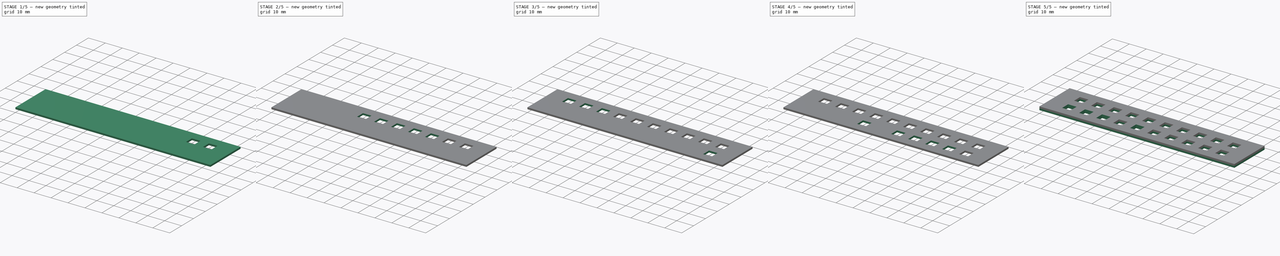
[diagram: build sequence overview — one tinted view per stage of 5, left to right]
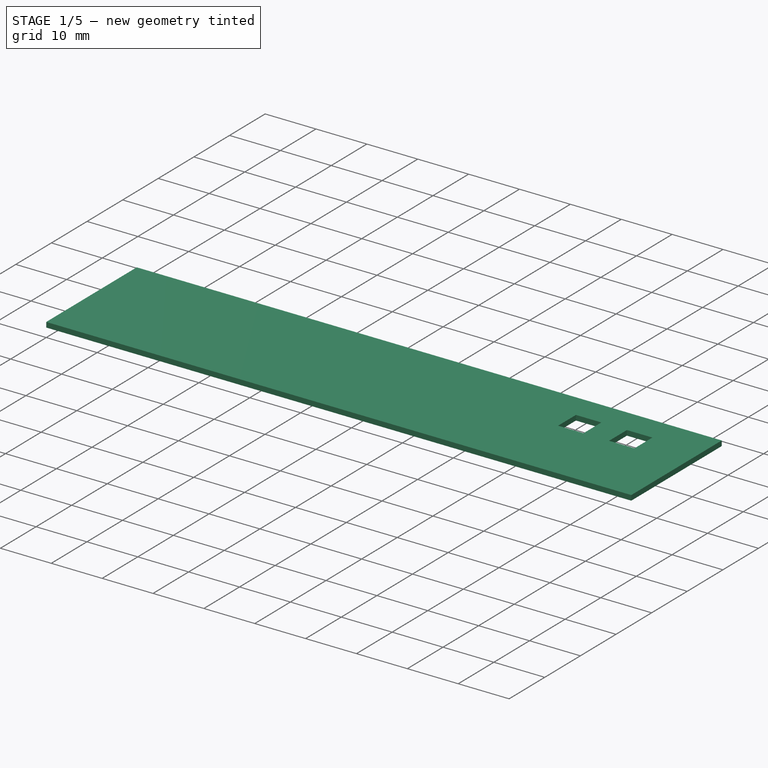
[diagram: stage 1 of 5 — iso view after this stage's code; geometry added in this stage tinted green]
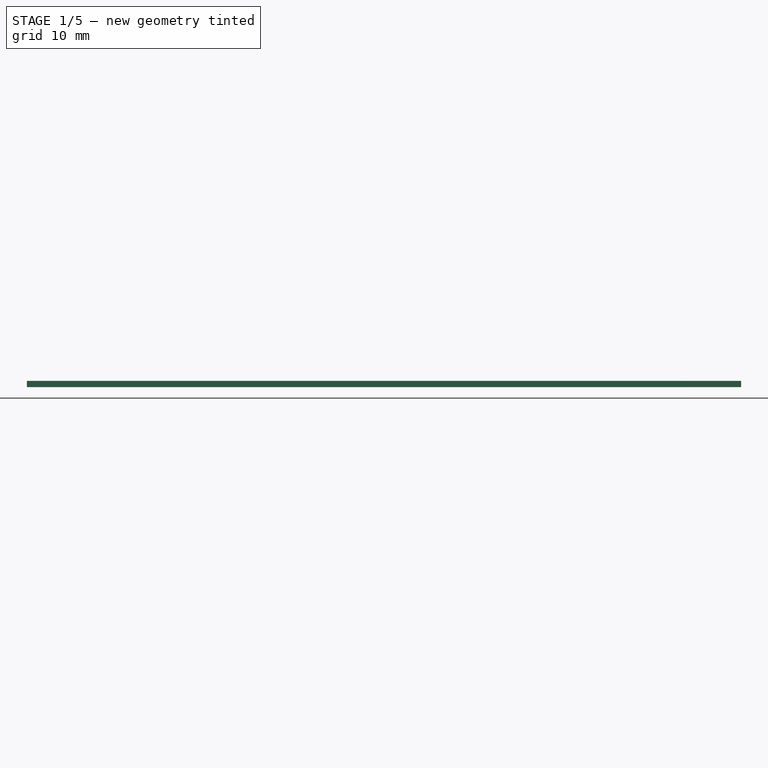
[diagram: stage 1 of 5 — front view after this stage's code; geometry added in this stage tinted green]
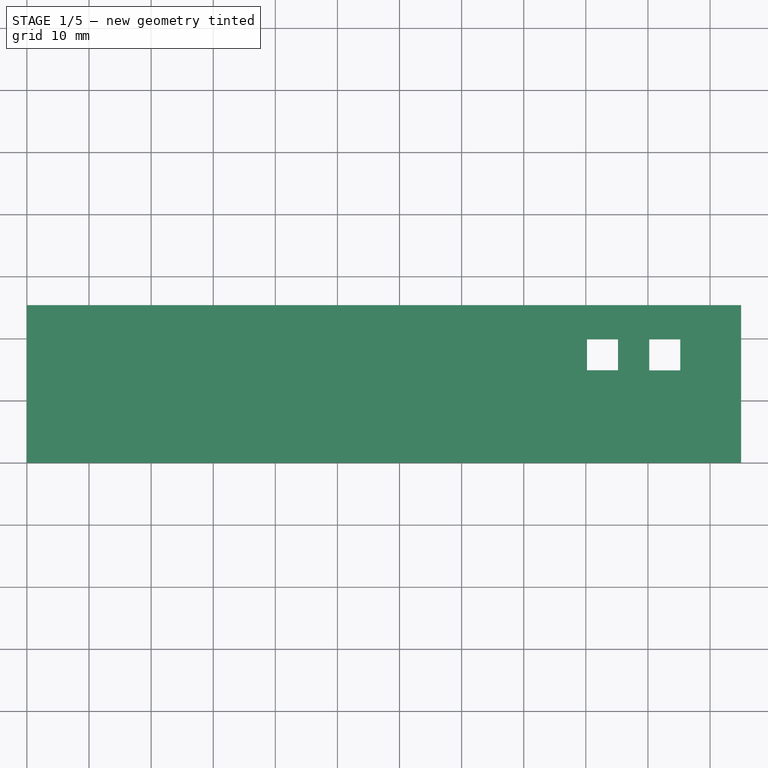
[diagram: stage 1 of 5 — top view after this stage's code; geometry added in this stage tinted green]
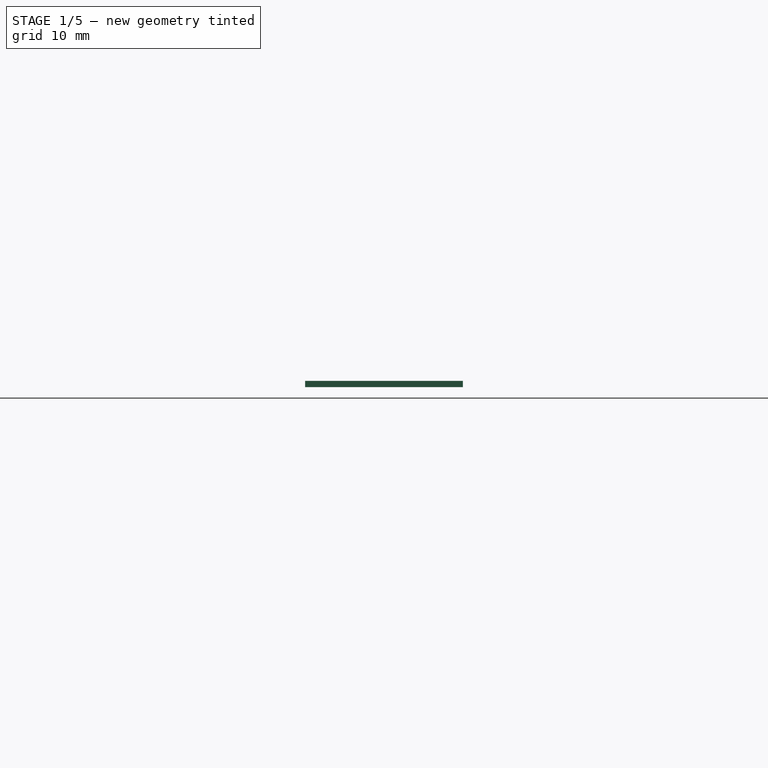
[diagram: stage 1 of 5 — right view after this stage's code; geometry added in this stage tinted green]
FCSTD DOCUMENT  (FreeCAD 0.17R13522 (Git))
Label: S205
License: All rights reserved
LicenseURL: http://en.wikipedia.org/wiki/All_rights_reserved
objects: PartDesign::Pocket×21, Part::Box×1, Sketcher::SketchObject×1, PartDesign::FeatureBase×1, PartDesign::Pad×1, PartDesign::Body×1
note: 48 computed .brp shape members not serialized (recipe doc carries the construction recipe); baked Part::Feature solids carry a one-line shape summary decoded from their .brp

FEATURE [Part::Box] Box  label="Cube"
  AttacherType = Attacher::AttachEngine3D
  Height = 1
  Length = 115
  Width = 25.4
FEATURE [Sketcher::SketchObject] Sketch
  MapMode = 5
  Support = -> [XY_Plane]
  sketch-geometry (99):
    g0: LineSegment StartX=9.9811 StartY=19.9388 StartZ=0 EndX=14.9811 EndY=19.9388 EndZ=0
    g1: LineSegment StartX=14.9811 StartY=19.9388 StartZ=0 EndX=14.9811 EndY=14.9388 EndZ=0
    g2: LineSegment StartX=14.9811 StartY=14.9388 StartZ=0 EndX=9.9811 EndY=14.9388 EndZ=0
    g3: LineSegment StartX=9.9811 StartY=14.9388 StartZ=0 EndX=9.9811 EndY=19.9388 EndZ=0
    g4: LineSegment StartX=20.0068 StartY=19.9336 StartZ=0 EndX=25.0068 EndY=19.9336 EndZ=0
    g5: LineSegment StartX=25.0068 StartY=19.9336 StartZ=0 EndX=25.0068 EndY=14.9336 EndZ=0
    g6: LineSegment StartX=25.0068 StartY=14.9336 StartZ=0 EndX=20.0068 EndY=14.9336 EndZ=0
    g7: LineSegment StartX=20.0068 StartY=14.9336 StartZ=0 EndX=20.0068 EndY=19.9336 EndZ=0
    g8: LineSegment [constr] StartX=9.9811 StartY=19.9388 StartZ=0 EndX=20.0068 EndY=19.9336 EndZ=0
    g9: LineSegment StartX=30.0326 StartY=19.9283 StartZ=0 EndX=35.0326 EndY=19.9283 EndZ=0
    g10: LineSegment StartX=35.0326 StartY=19.9283 StartZ=0 EndX=35.0326 EndY=14.9283 EndZ=0
    g11: LineSegment StartX=35.0326 StartY=14.9283 StartZ=0 EndX=30.0326 EndY=14.9283 EndZ=0
    g12: LineSegment StartX=30.0326 StartY=14.9283 StartZ=0 EndX=30.0326 EndY=19.9283 EndZ=0
    g13: LineSegment [constr] StartX=20.0068 StartY=19.9336 StartZ=0 EndX=30.0326 EndY=19.9283 EndZ=0
    g14: LineSegment StartX=40.0583 StartY=19.9231 StartZ=0 EndX=45.0583 EndY=19.9231 EndZ=0
    g15: LineSegment StartX=45.0583 StartY=19.9231 StartZ=0 EndX=45.0583 EndY=14.9231 EndZ=0
    g16: LineSegment StartX=45.0583 StartY=14.9231 StartZ=0 EndX=40.0583 EndY=14.9231 EndZ=0
    g17: LineSegment StartX=40.0583 StartY=14.9231 StartZ=0 EndX=40.0583 EndY=19.9231 EndZ=0
    g18: LineSegment [constr] StartX=30.0326 StartY=19.9283 StartZ=0 EndX=40.0583 EndY=19.9231 EndZ=0
    g19: LineSegment StartX=50.084 StartY=19.9179 StartZ=0 EndX=55.084 EndY=19.9179 EndZ=0
    g20: LineSegment StartX=55.084 StartY=19.9179 StartZ=0 EndX=55.084 EndY=14.9179 EndZ=0
    g21: LineSegment StartX=55.084 StartY=14.9179 StartZ=0 EndX=50.084 EndY=14.9179 EndZ=0
    g22: LineSegment StartX=50.084 StartY=14.9179 StartZ=0 EndX=50.084 EndY=19.9179 EndZ=0
    g23: LineSegment [constr] StartX=40.0583 StartY=19.9231 StartZ=0 EndX=50.084 EndY=19.9179 EndZ=0
    g24: LineSegment StartX=60.1098 StartY=19.9126 StartZ=0 EndX=65.1098 EndY=19.9126 EndZ=0
    g25: LineSegment StartX=65.1098 StartY=19.9126 StartZ=0 EndX=65.1098 EndY=14.9126 EndZ=0
    g26: LineSegment StartX=65.1098 StartY=14.9126 StartZ=0 EndX=60.1098 EndY=14.9126 EndZ=0
    g27: LineSegment StartX=60.1098 StartY=14.9126 StartZ=0 EndX=60.1098 EndY=19.9126 EndZ=0
    g28: LineSegment [constr] StartX=50.084 StartY=19.9179 StartZ=0 EndX=60.1098 EndY=19.9126 EndZ=0
    g29: LineSegment StartX=70.1355 StartY=19.9074 StartZ=0 EndX=75.1355 EndY=19.9074 EndZ=0
    g30: LineSegment StartX=75.1355 StartY=19.9074 StartZ=0 EndX=75.1355 EndY=14.9074 EndZ=0
    g31: LineSegment StartX=75.1355 StartY=14.9074 StartZ=0 EndX=70.1355 EndY=14.9074 EndZ=0
    g32: LineSegment StartX=70.1355 StartY=14.9074 StartZ=0 EndX=70.1355 EndY=19.9074 EndZ=0
    g33: LineSegment [constr] StartX=60.1098 StartY=19.9126 StartZ=0 EndX=70.1355 EndY=19.9074 EndZ=0
    g34: LineSegment StartX=80.1612 StartY=19.9022 StartZ=0 EndX=85.1612 EndY=19.9022 EndZ=0
    g35: LineSegment StartX=85.1612 StartY=19.9022 StartZ=0 EndX=85.1612 EndY=14.9022 EndZ=0
    g36: LineSegment StartX=85.1612 StartY=14.9022 StartZ=0 EndX=80.1612 EndY=14.9022 EndZ=0
    g37: LineSegment StartX=80.1612 StartY=14.9022 StartZ=0 EndX=80.1612 EndY=19.9022 EndZ=0
    g38: LineSegment [constr] StartX=70.1355 StartY=19.9074 StartZ=0 EndX=80.1612 EndY=19.9022 EndZ=0
    g39: LineSegment StartX=90.1869 StartY=19.8969 StartZ=0 EndX=95.1869 EndY=19.8969 EndZ=0
    g40: LineSegment StartX=95.1869 StartY=19.8969 StartZ=0 EndX=95.1869 EndY=14.8969 EndZ=0
    g41: LineSegment StartX=95.1869 StartY=14.8969 StartZ=0 EndX=90.1869 EndY=14.8969 EndZ=0
    g42: LineSegment StartX=90.1869 StartY=14.8969 StartZ=0 EndX=90.1869 EndY=19.8969 EndZ=0
    g43: LineSegment [constr] StartX=80.1612 StartY=19.9022 StartZ=0 EndX=90.1869 EndY=19.8969 EndZ=0
    g44: LineSegment StartX=100.213 StartY=19.8917 StartZ=0 EndX=105.213 EndY=19.8917 EndZ=0
    g45: LineSegment StartX=105.213 StartY=19.8917 StartZ=0 EndX=105.213 EndY=14.8917 EndZ=0
    g46: LineSegment StartX=105.213 StartY=14.8917 StartZ=0 EndX=100.213 EndY=14.8917 EndZ=0
    g47: LineSegment StartX=100.213 StartY=14.8917 StartZ=0 EndX=100.213 EndY=19.8917 EndZ=0
    g48: LineSegment [constr] StartX=90.1869 StartY=19.8969 StartZ=0 EndX=100.213 EndY=19.8917 EndZ=0
    g49: LineSegment StartX=9.97587 StartY=9.91306 StartZ=0 EndX=14.9759 EndY=9.91306 EndZ=0
    g50: LineSegment StartX=14.9759 StartY=9.91306 StartZ=0 EndX=14.9759 EndY=4.91306 EndZ=0
    g51: LineSegment StartX=14.9759 StartY=4.91306 StartZ=0 EndX=9.97587 EndY=4.91306 EndZ=0
    g52: LineSegment StartX=9.97587 StartY=4.91306 StartZ=0 EndX=9.97587 EndY=9.91306 EndZ=0
    g53: LineSegment [constr] StartX=9.9811 StartY=19.9388 StartZ=0 EndX=9.97587 EndY=9.91306 EndZ=0
    g54: LineSegment StartX=20.0016 StartY=9.90783 StartZ=0 EndX=25.0016 EndY=9.90783 EndZ=0
    g55: LineSegment StartX=25.0016 StartY=9.90783 StartZ=0 EndX=25.0016 EndY=4.90783 EndZ=0
    g56: LineSegment StartX=25.0016 StartY=4.90783 StartZ=0 EndX=20.0016 EndY=4.90783 EndZ=0
    g57: LineSegment StartX=20.0016 StartY=4.90783 StartZ=0 EndX=20.0016 EndY=9.90783 EndZ=0
    g58: LineSegment [constr] StartX=9.97587 StartY=9.91306 StartZ=0 EndX=20.0016 EndY=9.90783 EndZ=0
    g59: LineSegment StartX=30.0273 StartY=9.90259 StartZ=0 EndX=35.0273 EndY=9.90259 EndZ=0
    g60: LineSegment StartX=35.0273 StartY=9.90259 StartZ=0 EndX=35.0273 EndY=4.90259 EndZ=0
    g61: LineSegment StartX=35.0273 StartY=4.90259 StartZ=0 EndX=30.0273 EndY=4.90259 EndZ=0
    g62: LineSegment StartX=30.0273 StartY=4.90259 StartZ=0 EndX=30.0273 EndY=9.90259 EndZ=0
    g63: LineSegment [constr] StartX=20.0016 StartY=9.90783 StartZ=0 EndX=30.0273 EndY=9.90259 EndZ=0
    g64: LineSegment StartX=40.0531 StartY=9.89736 StartZ=0 EndX=45.0531 EndY=9.89736 EndZ=0
    g65: LineSegment StartX=45.0531 StartY=9.89736 StartZ=0 EndX=45.0531 EndY=4.89736 EndZ=0
    g66: LineSegment StartX=45.0531 StartY=4.89736 StartZ=0 EndX=40.0531 EndY=4.89736 EndZ=0
    g67: LineSegment StartX=40.0531 StartY=4.89736 StartZ=0 EndX=40.0531 EndY=9.89736 EndZ=0
    g68: LineSegment [constr] StartX=30.0273 StartY=9.90259 StartZ=0 EndX=40.0531 EndY=9.89736 EndZ=0
    g69: LineSegment StartX=50.0788 StartY=9.89213 StartZ=0 EndX=55.0788 EndY=9.89213 EndZ=0
    g70: LineSegment StartX=55.0788 StartY=9.89213 StartZ=0 EndX=55.0788 EndY=4.89213 EndZ=0
    g71: LineSegment StartX=55.0788 StartY=4.89213 StartZ=0 EndX=50.0788 EndY=4.89213 EndZ=0
    g72: LineSegment StartX=50.0788 StartY=4.89213 StartZ=0 EndX=50.0788 EndY=9.89213 EndZ=0
    g73: LineSegment [constr] StartX=40.0531 StartY=9.89736 StartZ=0 EndX=50.0788 EndY=9.89213 EndZ=0
    g74: LineSegment StartX=60.1045 StartY=9.8869 StartZ=0 EndX=65.1045 EndY=9.8869 EndZ=0
    g75: LineSegment StartX=65.1045 StartY=9.8869 StartZ=0 EndX=65.1045 EndY=4.8869 EndZ=0
    g76: LineSegment StartX=65.1045 StartY=4.8869 StartZ=0 EndX=60.1045 EndY=4.8869 EndZ=0
    g77: LineSegment StartX=60.1045 StartY=4.8869 StartZ=0 EndX=60.1045 EndY=9.8869 EndZ=0
    g78: LineSegment [constr] StartX=50.0788 StartY=9.89213 StartZ=0 EndX=60.1045 EndY=9.8869 EndZ=0
    g79: LineSegment StartX=70.1303 StartY=9.88167 StartZ=0 EndX=75.1303 EndY=9.88167 EndZ=0
    g80: LineSegment StartX=75.1303 StartY=9.88167 StartZ=0 EndX=75.1303 EndY=4.88167 EndZ=0
    g81: LineSegment StartX=75.1303 StartY=4.88167 StartZ=0 EndX=70.1303 EndY=4.88167 EndZ=0
    g82: LineSegment StartX=70.1303 StartY=4.88167 StartZ=0 EndX=70.1303 EndY=9.88167 EndZ=0
    g83: LineSegment [constr] StartX=60.1045 StartY=9.8869 StartZ=0 EndX=70.1303 EndY=9.88167 EndZ=0
    g84: LineSegment StartX=80.156 StartY=9.87644 StartZ=0 EndX=85.156 EndY=9.87644 EndZ=0
    g85: LineSegment StartX=85.156 StartY=9.87644 StartZ=0 EndX=85.156 EndY=4.87644 EndZ=0
    g86: LineSegment StartX=85.156 StartY=4.87644 StartZ=0 EndX=80.156 EndY=4.87644 EndZ=0
    g87: LineSegment StartX=80.156 StartY=4.87644 StartZ=0 EndX=80.156 EndY=9.87644 EndZ=0
    g88: LineSegment [constr] StartX=70.1303 StartY=9.88167 StartZ=0 EndX=80.156 EndY=9.87644 EndZ=0
    g89: LineSegment StartX=90.1817 StartY=9.87121 StartZ=0 EndX=95.1817 EndY=9.87121 EndZ=0
    g90: LineSegment StartX=95.1817 StartY=9.87121 StartZ=0 EndX=95.1817 EndY=4.87121 EndZ=0
    g91: LineSegment StartX=95.1817 StartY=4.87121 StartZ=0 EndX=90.1817 EndY=4.87121 EndZ=0
    g92: LineSegment StartX=90.1817 StartY=4.87121 StartZ=0 EndX=90.1817 EndY=9.87121 EndZ=0
    g93: LineSegment [constr] StartX=80.156 StartY=9.87644 StartZ=0 EndX=90.1817 EndY=9.87121 EndZ=0
    g94: LineSegment StartX=100.207 StartY=9.86598 StartZ=0 EndX=105.207 EndY=9.86598 EndZ=0
    g95: LineSegment StartX=105.207 StartY=9.86598 StartZ=0 EndX=105.207 EndY=4.86598 EndZ=0
    g96: LineSegment StartX=105.207 StartY=4.86598 StartZ=0 EndX=100.207 EndY=4.86598 EndZ=0
    g97: LineSegment StartX=100.207 StartY=4.86598 StartZ=0 EndX=100.207 EndY=9.86598 EndZ=0
    g98: LineSegment [constr] StartX=90.1817 StartY=9.87121 StartZ=0 EndX=100.207 EndY=9.86598 EndZ=0
  constraints (276):
    c: Coincident(g0,g1)
    c: Coincident(g1,g2)
    c: Coincident(g2,g3)
    c: Coincident(g3,g0)
    c: Horizontal(g0)
    c: Horizontal(g2)
    c: Vertical(g1)
    c: Vertical(g3)
    c: DistanceX(g0,g0) = 5
    c: Equal(g3,g0)
    c: Coincident(g4,g5)
    c: Coincident(g5,g6)
    c: Coincident(g6,g7)
    c: Coincident(g7,g4)
    c: Horizontal(g4)
    c: Horizontal(g6)
    c: Vertical(g5)
    c: Vertical(g7)
    c: Equal(g0,g4) = 5
    c: Equal(g7,g4)
    c: Coincident(g0,g8)
    c: Coincident(g4,g8)
    c: Distance(g8) = 10.0257
    c: Angle(g8) = -0.000521757
    c: Coincident(g9,g10)
    c: Coincident(g10,g11)
    c: Coincident(g11,g12)
    c: Coincident(g12,g9)
    c: Horizontal(g9)
    c: Horizontal(g11)
    c: Vertical(g10)
    c: Vertical(g12)
    c: Equal(g0,g9) = 5
    c: Equal(g12,g9)
    c: Coincident(g4,g13)
    c: Coincident(g9,g13)
    c: Equal(g8,g13)
    c: Parallel(g13,g8)
    c: Coincident(g14,g15)
    c: Coincident(g15,g16)
    c: Coincident(g16,g17)
    c: Coincident(g17,g14)
    c: Horizontal(g14)
    c: Horizontal(g16)
    c: Vertical(g15)
    c: Vertical(g17)
    c: Equal(g0,g14) = 5
    c: Equal(g17,g14)
    c: Coincident(g9,g18)
    c: Coincident(g14,g18)
    c: Equal(g8,g18)
    c: Parallel(g18,g8)
    c: Coincident(g19,g20)
    c: Coincident(g20,g21)
    c: Coincident(g21,g22)
    c: Coincident(g22,g19)
    c: Horizontal(g19)
    c: Horizontal(g21)
    c: Vertical(g20)
    c: Vertical(g22)
    c: Equal(g0,g19) = 5
    c: Equal(g22,g19)
    c: Coincident(g14,g23)
    c: Coincident(g19,g23)
    c: Equal(g8,g23)
    c: Parallel(g23,g8)
    c: Coincident(g24,g25)
    c: Coincident(g25,g26)
    c: Coincident(g26,g27)
    c: Coincident(g27,g24)
    c: Horizontal(g24)
    c: Horizontal(g26)
    c: Vertical(g25)
    c: Vertical(g27)
    c: Equal(g0,g24) = 5
    c: Equal(g27,g24)
    c: Coincident(g19,g28)
    c: Coincident(g24,g28)
    c: Equal(g8,g28)
    c: Parallel(g28,g8)
    c: Coincident(g29,g30)
    c: Coincident(g30,g31)
    c: Coincident(g31,g32)
    c: Coincident(g32,g29)
    c: Horizontal(g29)
    c: Horizontal(g31)
    c: Vertical(g30)
    c: Vertical(g32)
    c: Equal(g0,g29) = 5
    c: Equal(g32,g29)
    c: Coincident(g24,g33)
    c: Coincident(g29,g33)
    c: Equal(g8,g33)
    c: Parallel(g33,g8)
    c: Coincident(g34,g35)
    c: Coincident(g35,g36)
    c: Coincident(g36,g37)
    c: Coincident(g37,g34)
    c: Horizontal(g34)
    c: Horizontal(g36)
    c: Vertical(g35)
    c: Vertical(g37)
    c: Equal(g0,g34) = 5
    c: Equal(g37,g34)
    c: Coincident(g29,g38)
    c: Coincident(g34,g38)
    c: Equal(g8,g38)
    c: Parallel(g38,g8)
    c: Coincident(g39,g40)
    c: Coincident(g40,g41)
    c: Coincident(g41,g42)
    c: Coincident(g42,g39)
    c: Horizontal(g39)
    c: Horizontal(g41)
    c: Vertical(g40)
    c: Vertical(g42)
    c: Equal(g0,g39) = 5
    c: Equal(g42,g39)
    c: Coincident(g34,g43)
    c: Coincident(g39,g43)
    c: Equal(g8,g43)
    c: Parallel(g43,g8)
    c: Coincident(g44,g45)
    c: Coincident(g45,g46)
    c: Coincident(g46,g47)
    c: Coincident(g47,g44)
    c: Horizontal(g44)
    c: Horizontal(g46)
    c: Vertical(g45)
    c: Vertical(g47)
    c: Equal(g0,g44) = 5
    c: Equal(g47,g44)
    c: Coincident(g39,g48)
    c: Coincident(g44,g48)
    c: Equal(g8,g48)
    c: Parallel(g48,g8)
    c: Coincident(g49,g50)
    c: Coincident(g50,g51)
    c: Coincident(g51,g52)
    c: Coincident(g52,g49)
    c: Horizontal(g49)
    c: Horizontal(g51)
    c: Vertical(g50)
    c: Vertical(g52)
    c: Equal(g0,g49) = 5
    c: Equal(g52,g49)
    c: Coincident(g0,g53)
    c: Coincident(g49,g53)
    c: Equal(g53,g8)
    c: Perpendicular(g53,g8)
    c: Coincident(g54,g55)
    c: Coincident(g55,g56)
    c: Coincident(g56,g57)
    c: Coincident(g57,g54)
    c: Horizontal(g54)
    c: Horizontal(g56)
    c: Vertical(g55)
    c: Vertical(g57)
    c: Equal(g0,g54) = 5
    c: Equal(g57,g54)
    c: Coincident(g49,g58)
    c: Coincident(g54,g58)
    c: Equal(g8,g58)
    c: Parallel(g58,g8)
    c: Coincident(g59,g60)
    c: Coincident(g60,g61)
    c: Coincident(g61,g62)
    c: Coincident(g62,g59)
    c: Horizontal(g59)
    c: Horizontal(g61)
    c: Vertical(g60)
    c: Vertical(g62)
    c: Equal(g0,g59) = 5
    c: Equal(g62,g59)
    c: Coincident(g54,g63)
    c: Coincident(g59,g63)
    c: Equal(g8,g63)
    c: Parallel(g63,g8)
    c: Coincident(g64,g65)
    c: Coincident(g65,g66)
    c: Coincident(g66,g67)
    c: Coincident(g67,g64)
    c: Horizontal(g64)
    c: Horizontal(g66)
    c: Vertical(g65)
    c: Vertical(g67)
    c: Equal(g0,g64) = 5
    c: Equal(g67,g64)
    c: Coincident(g59,g68)
    c: Coincident(g64,g68)
    c: Equal(g8,g68)
    c: Parallel(g68,g8)
    c: Coincident(g69,g70)
    c: Coincident(g70,g71)
    c: Coincident(g71,g72)
    c: Coincident(g72,g69)
    c: Horizontal(g69)
    c: Horizontal(g71)
    c: Vertical(g70)
    c: Vertical(g72)
    c: Equal(g0,g69) = 5
    c: Equal(g72,g69)
    c: Coincident(g64,g73)
    c: Coincident(g69,g73)
    c: Equal(g8,g73)
    c: Parallel(g73,g8)
    c: Coincident(g74,g75)
    c: Coincident(g75,g76)
    c: Coincident(g76,g77)
    c: Coincident(g77,g74)
    c: Horizontal(g74)
    c: Horizontal(g76)
    c: Vertical(g75)
    c: Vertical(g77)
    c: Equal(g0,g74) = 5
    c: Equal(g77,g74)
    c: Coincident(g69,g78)
    c: Coincident(g74,g78)
    c: Equal(g8,g78)
    c: Parallel(g78,g8)
    c: Coincident(g79,g80)
    c: Coincident(g80,g81)
    c: Coincident(g81,g82)
    c: Coincident(g82,g79)
    c: Horizontal(g79)
    c: Horizontal(g81)
    c: Vertical(g80)
    c: Vertical(g82)
    c: Equal(g0,g79) = 5
    c: Equal(g82,g79)
    c: Coincident(g74,g83)
    c: Coincident(g79,g83)
    c: Equal(g8,g83)
    c: Parallel(g83,g8)
    c: Coincident(g84,g85)
    c: Coincident(g85,g86)
    c: Coincident(g86,g87)
    c: Coincident(g87,g84)
    c: Horizontal(g84)
    c: Horizontal(g86)
    c: Vertical(g85)
    c: Vertical(g87)
    c: Equal(g0,g84) = 5
    c: Equal(g87,g84)
    c: Coincident(g79,g88)
    c: Coincident(g84,g88)
    c: Equal(g8,g88)
    c: Parallel(g88,g8)
    c: Coincident(g89,g90)
    c: Coincident(g90,g91)
    c: Coincident(g91,g92)
    c: Coincident(g92,g89)
    c: Horizontal(g89)
    c: Horizontal(g91)
    c: Vertical(g90)
    c: Vertical(g92)
    c: Equal(g0,g89) = 5
    c: Equal(g92,g89)
    c: Coincident(g84,g93)
    c: Coincident(g89,g93)
    c: Equal(g8,g93)
    c: Parallel(g93,g8)
    c: Coincident(g94,g95)
    c: Coincident(g95,g96)
    c: Coincident(g96,g97)
    c: Coincident(g97,g94)
    c: Horizontal(g94)
    c: Horizontal(g96)
    c: Vertical(g95)
    c: Vertical(g97)
    c: Equal(g0,g94) = 5
    c: Equal(g97,g94)
    c: Coincident(g89,g98)
    c: Coincident(g94,g98)
    c: Equal(g8,g98)
    c: Parallel(g98,g8)
FEATURE [PartDesign::FeatureBase] BaseFeature
  BaseFeature = -> Box
FEATURE [PartDesign::Pocket] Pocket
  BaseFeature = -> BaseFeature
  Length = 5
  Length2 = 100
  Profile = -> Sketch
  Type = 1
FEATURE [PartDesign::Pocket] Pocket001
  BaseFeature = -> Pocket
  Length = 5
  Length2 = 100
  Profile = -> Pocket [Face24]
  Type = 0
FEATURE [PartDesign::Pocket] Pocket002
  BaseFeature = -> Pocket001
  Length = 5
  Length2 = 100
  Profile = -> Pocket001 [Face12]
  Type = 0
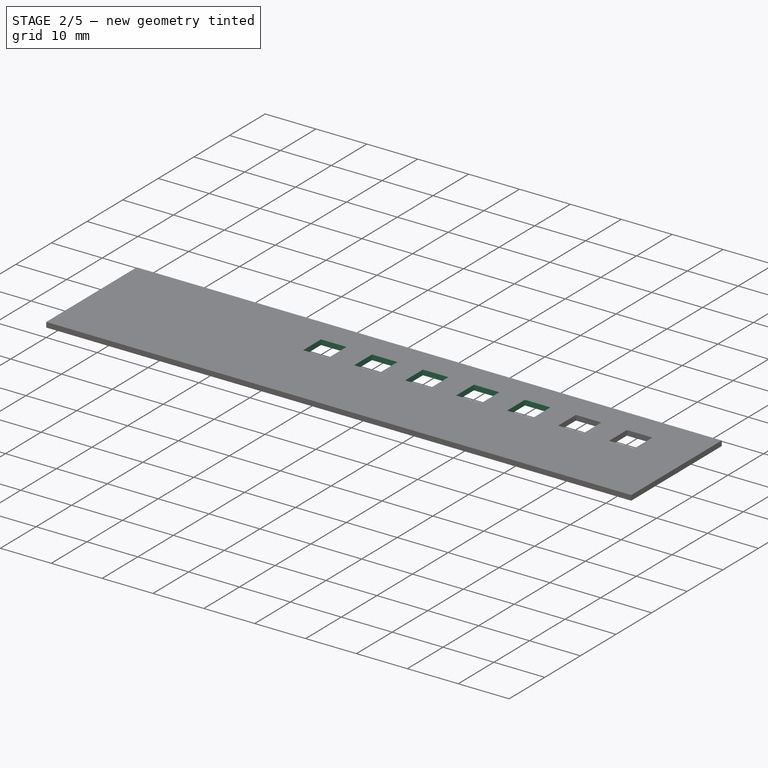
[diagram: stage 2 of 5 — iso view after this stage's code; geometry added in this stage tinted green]
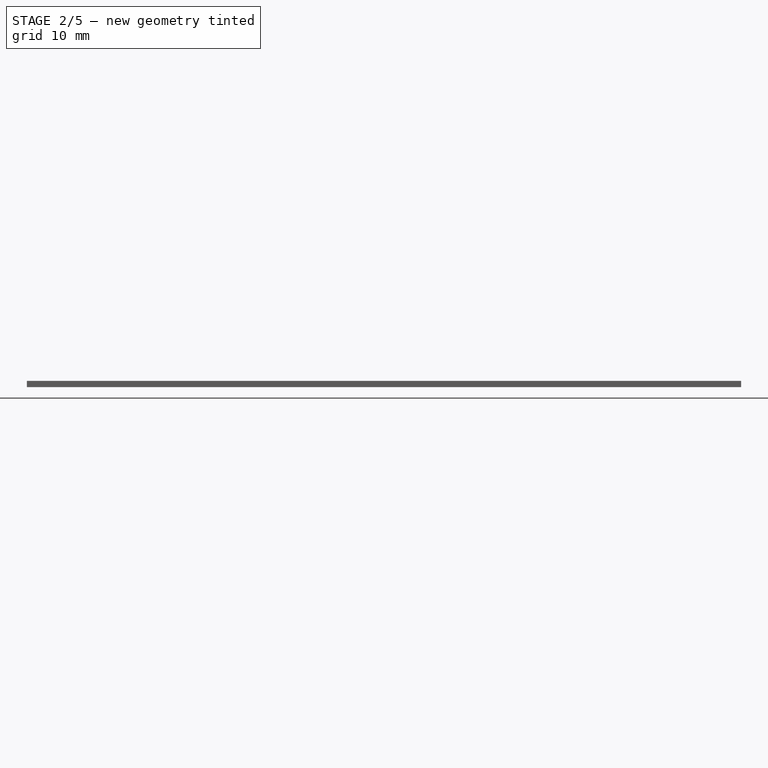
[diagram: stage 2 of 5 — front view after this stage's code; geometry added in this stage tinted green]
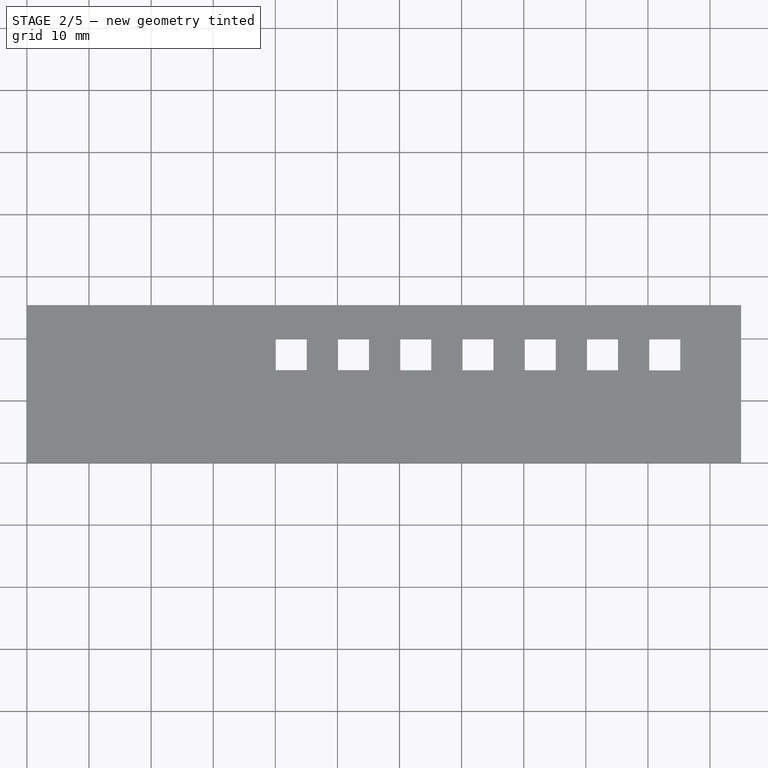
[diagram: stage 2 of 5 — top view after this stage's code; geometry added in this stage tinted green]
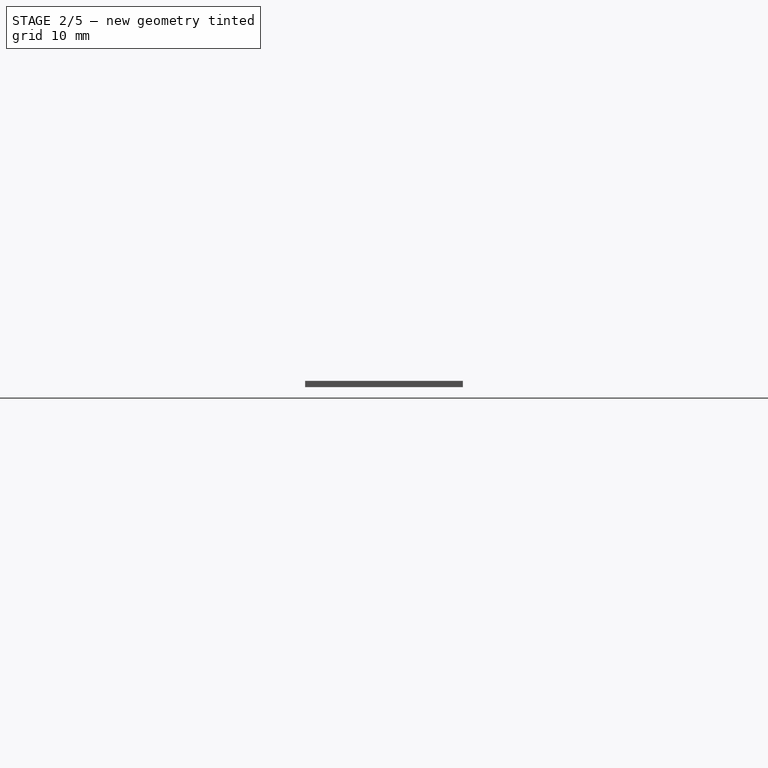
[diagram: stage 2 of 5 — right view after this stage's code; geometry added in this stage tinted green]
FEATURE [PartDesign::Pocket] Pocket003
  BaseFeature = -> Pocket002
  Length = 5
  Length2 = 100
  Profile = -> Pocket002 [Face17]
  Type = 1
FEATURE [PartDesign::Pocket] Pocket004
  BaseFeature = -> Pocket003
  Length = 5
  Length2 = 100
  Profile = -> Pocket003 [Face20]
  Type = 0
FEATURE [PartDesign::Pocket] Pocket005
  BaseFeature = -> Pocket004
  Length = 5
  Length2 = 100
  Profile = -> Pocket004 [Face28]
  Type = 0
FEATURE [PartDesign::Pocket] Pocket006
  BaseFeature = -> Pocket005
  Length = 5
  Length2 = 100
  Profile = -> Pocket005 [Face32]
  Type = 0
FEATURE [PartDesign::Pocket] Pocket007
  BaseFeature = -> Pocket006
  Length = 5
  Length2 = 100
  Profile = -> Pocket006 [Face35]
  Type = 0
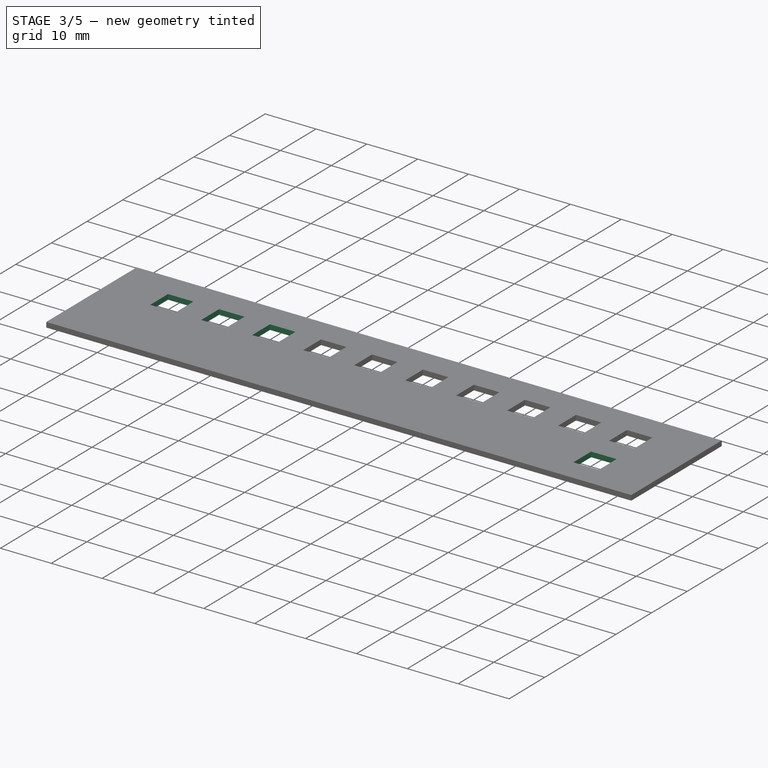
[diagram: stage 3 of 5 — iso view after this stage's code; geometry added in this stage tinted green]
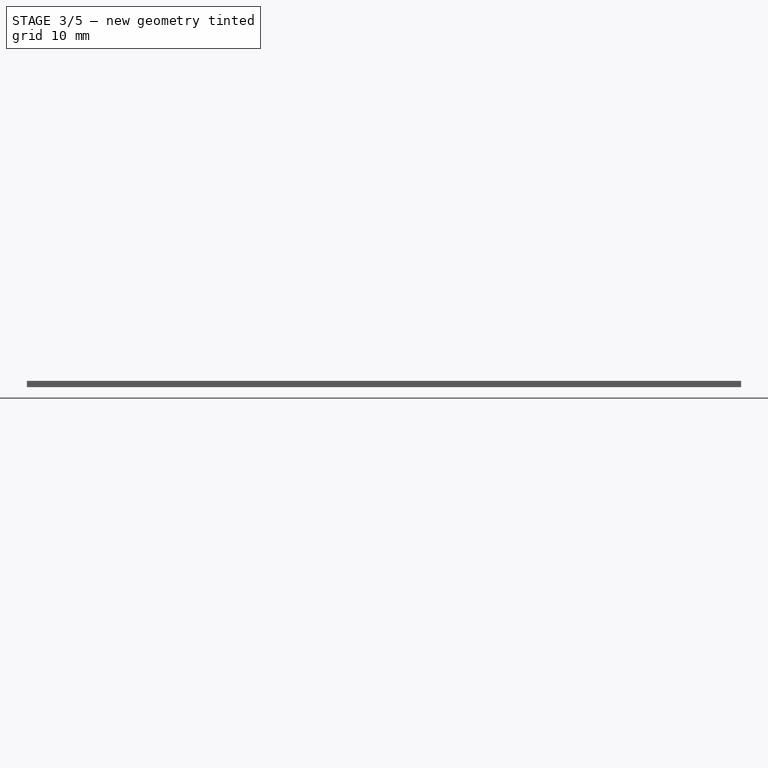
[diagram: stage 3 of 5 — front view after this stage's code; geometry added in this stage tinted green]
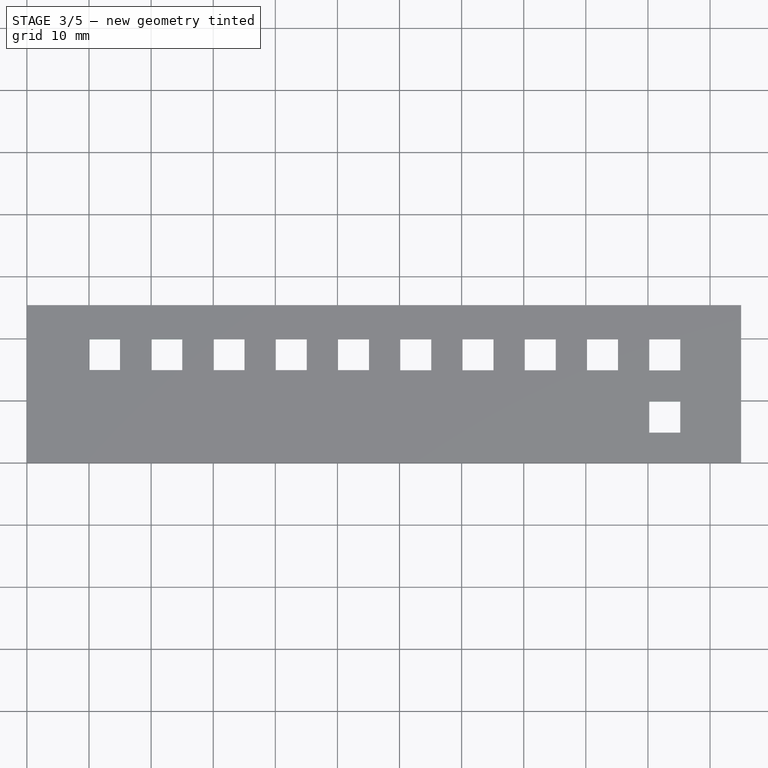
[diagram: stage 3 of 5 — top view after this stage's code; geometry added in this stage tinted green]
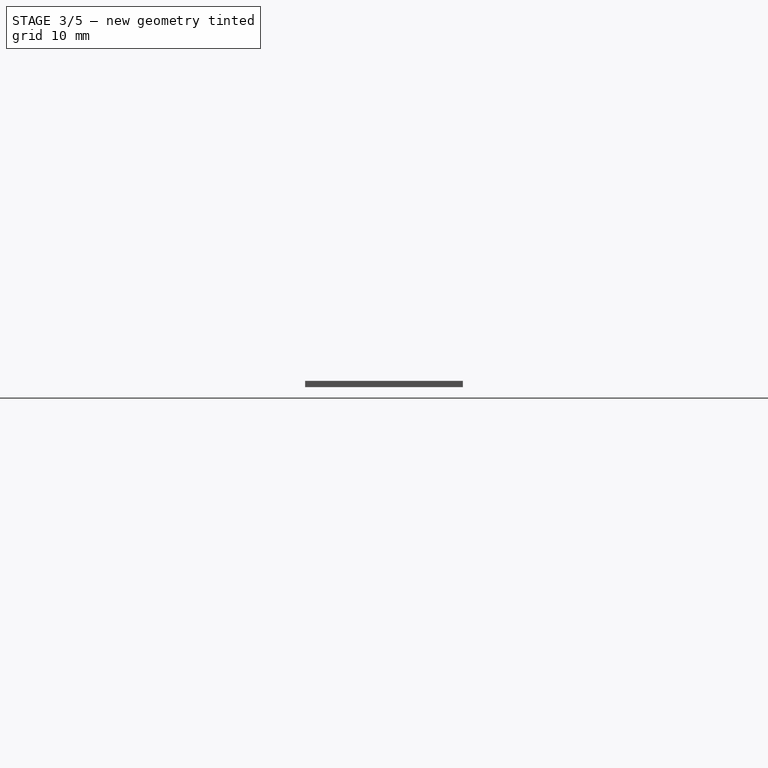
[diagram: stage 3 of 5 — right view after this stage's code; geometry added in this stage tinted green]
FEATURE [PartDesign::Pocket] Pocket008
  BaseFeature = -> Pocket007
  Length = 5
  Length2 = 100
  Profile = -> Pocket007 [Face38]
  Type = 0
FEATURE [PartDesign::Pocket] Pocket009
  BaseFeature = -> Pocket008
  Length = 5
  Length2 = 100
  Profile = -> Pocket008 [Face46]
  Type = 0
FEATURE [PartDesign::Pocket] Pocket010
  BaseFeature = -> Pocket009
  Length = 5
  Length2 = 100
  Profile = -> Pocket009 [Face52]
  Type = 0
FEATURE [PartDesign::Pocket] Pocket011
  BaseFeature = -> Pocket010
  Length = 5
  Length2 = 100
  Profile = -> Pocket010 [Face55]
  Type = 0
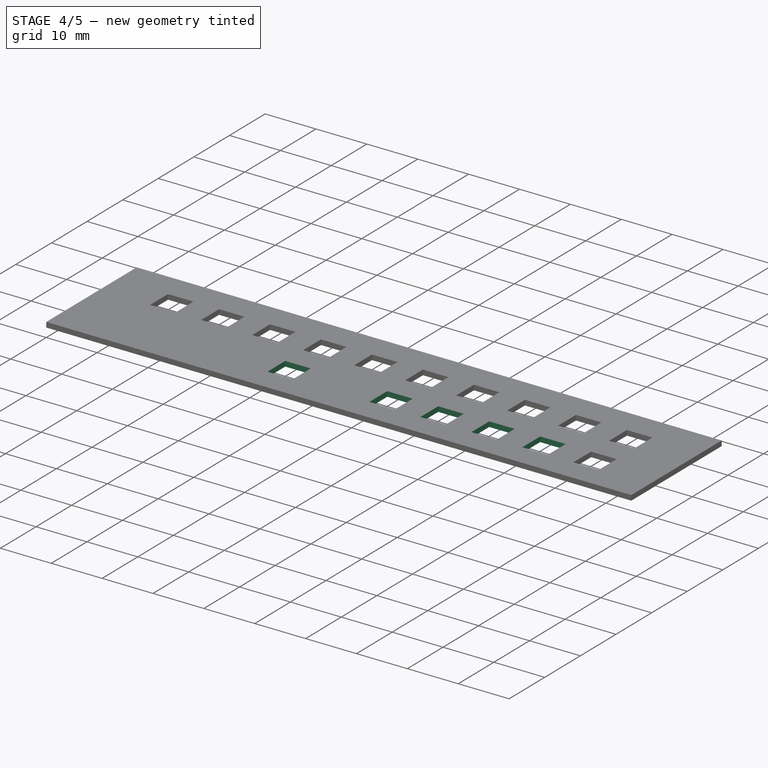
[diagram: stage 4 of 5 — iso view after this stage's code; geometry added in this stage tinted green]
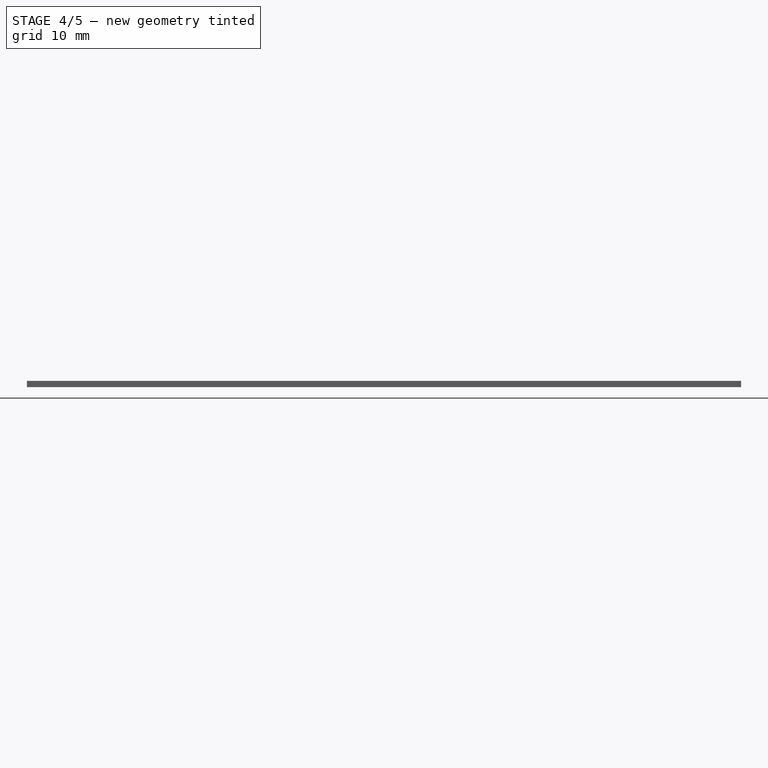
[diagram: stage 4 of 5 — front view after this stage's code; geometry added in this stage tinted green]
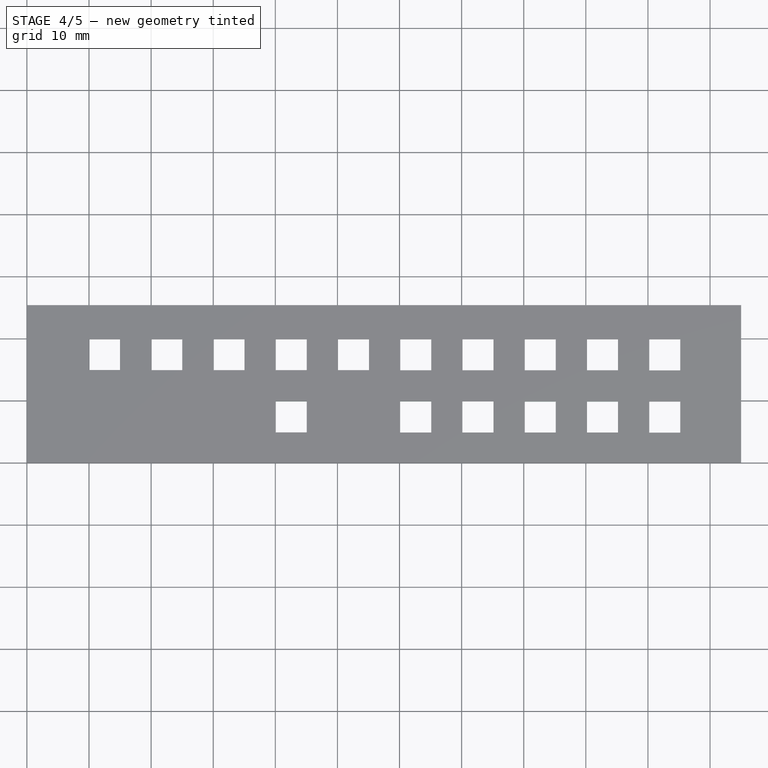
[diagram: stage 4 of 5 — top view after this stage's code; geometry added in this stage tinted green]
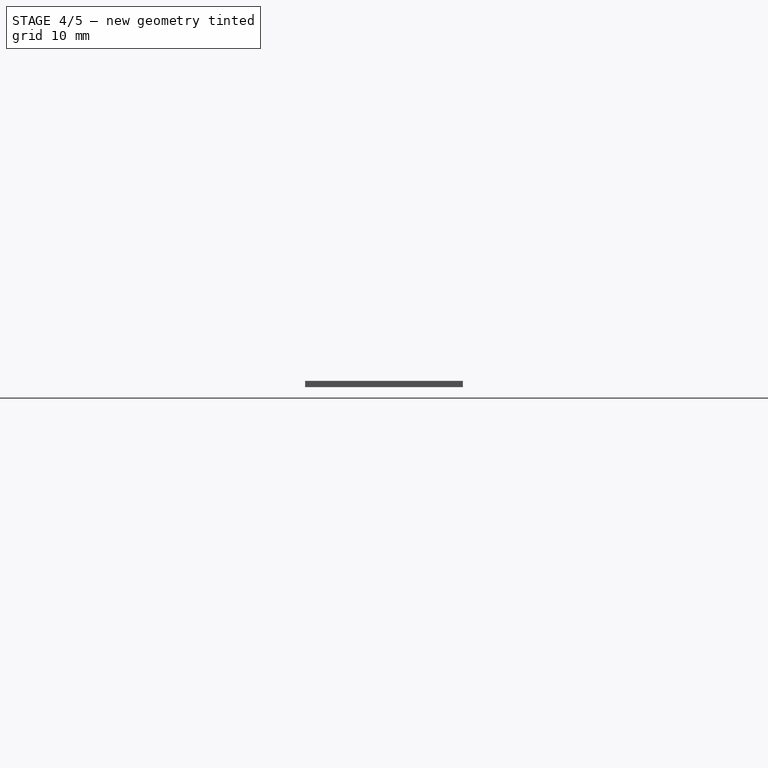
[diagram: stage 4 of 5 — right view after this stage's code; geometry added in this stage tinted green]
FEATURE [PartDesign::Pocket] Pocket012
  BaseFeature = -> Pocket011
  Length = 5
  Length2 = 100
  Profile = -> Pocket011 [Face51]
  Type = 0
FEATURE [PartDesign::Pocket] Pocket013
  BaseFeature = -> Pocket012
  Length = 5
  Length2 = 100
  Profile = -> Pocket012 [Face56]
  Type = 0
FEATURE [PartDesign::Pocket] Pocket014
  BaseFeature = -> Pocket013
  Length = 5
  Length2 = 100
  Profile = -> Pocket013 [Face59]
  Type = 0
FEATURE [PartDesign::Pocket] Pocket015
  BaseFeature = -> Pocket014
  Length = 5
  Length2 = 100
  Profile = -> Pocket014 [Face63]
  Type = 0
FEATURE [PartDesign::Pocket] Pocket016
  BaseFeature = -> Pocket015
  Length = 5
  Length2 = 100
  Profile = -> Pocket015 [Face68]
  Type = 0
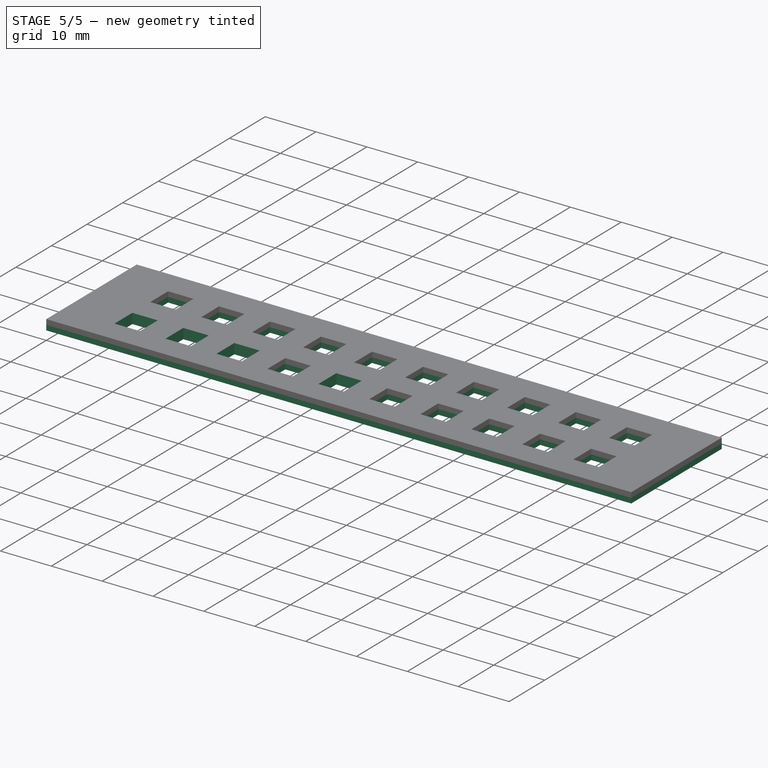
[diagram: stage 5 of 5 — iso view after this stage's code; geometry added in this stage tinted green]
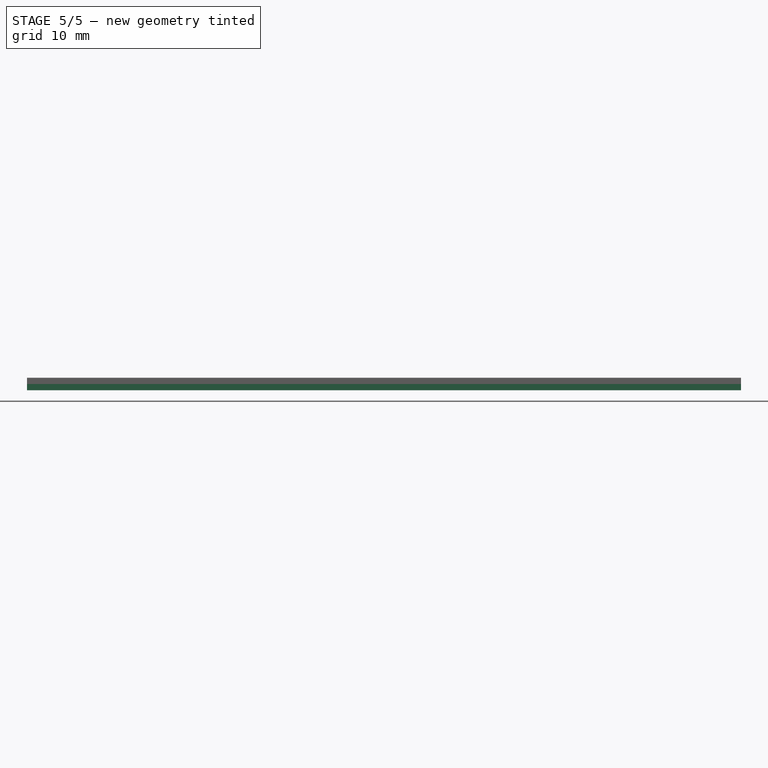
[diagram: stage 5 of 5 — front view after this stage's code; geometry added in this stage tinted green]
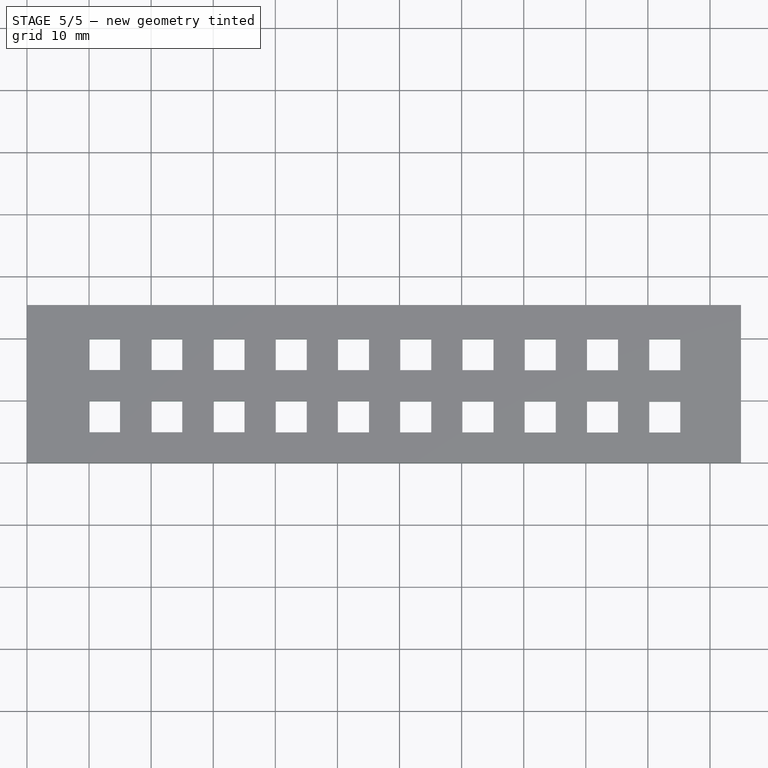
[diagram: stage 5 of 5 — top view after this stage's code; geometry added in this stage tinted green]
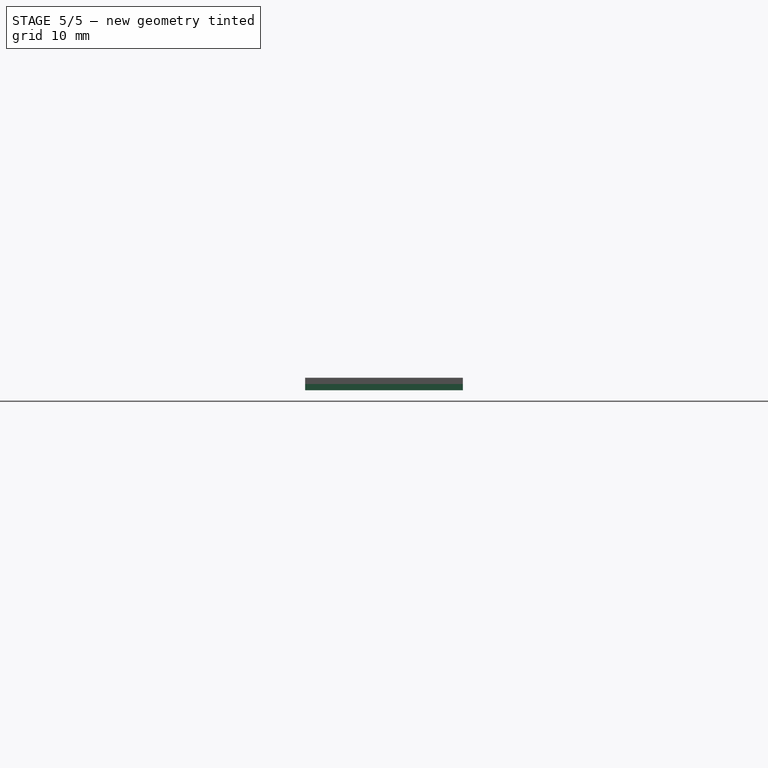
[diagram: stage 5 of 5 — right view after this stage's code; geometry added in this stage tinted green]
FEATURE [PartDesign::Pocket] Pocket017
  BaseFeature = -> Pocket016
  Length = 5
  Length2 = 100
  Profile = -> Pocket016 [Face72]
  Type = 0
FEATURE [PartDesign::Pocket] Pocket018
  BaseFeature = -> Pocket017
  Length = 5
  Length2 = 100
  Profile = -> Pocket017 [Face76]
  Type = 0
FEATURE [PartDesign::Pocket] Pocket019
  BaseFeature = -> Pocket018
  Length = 5
  Length2 = 100
  Profile = -> Pocket018 [Face80]
  Type = 0
FEATURE [PartDesign::Pocket] Pocket020
  BaseFeature = -> Pocket019
  Length = 5
  Length2 = 100
  Profile = -> Pocket019 [Face83]
  Type = 0
FEATURE [PartDesign::Pad] Pad
  BaseFeature = -> Pocket020
  Length = 1
  Length2 = 100
  Profile = -> Pocket020 [Face5]
  Type = 0
FEATURE [PartDesign::Body] Body
  BaseFeature = -> Box
  Group = -> [BaseFeature,Sketch,Pocket,Pocket001,Pocket002,Pocket003,Pocket004,Pocket005,Pocket006,Pocket007,Pocket008,Pocket009,Pocket010,Pocket011,Pocket012,Pocket013,Pocket014,Pocket015,Pocket016,Pocket017,Pocket018,Pocket019,Pocket020,Pad]
  Origin = -> Origin
  Tip = -> Pad
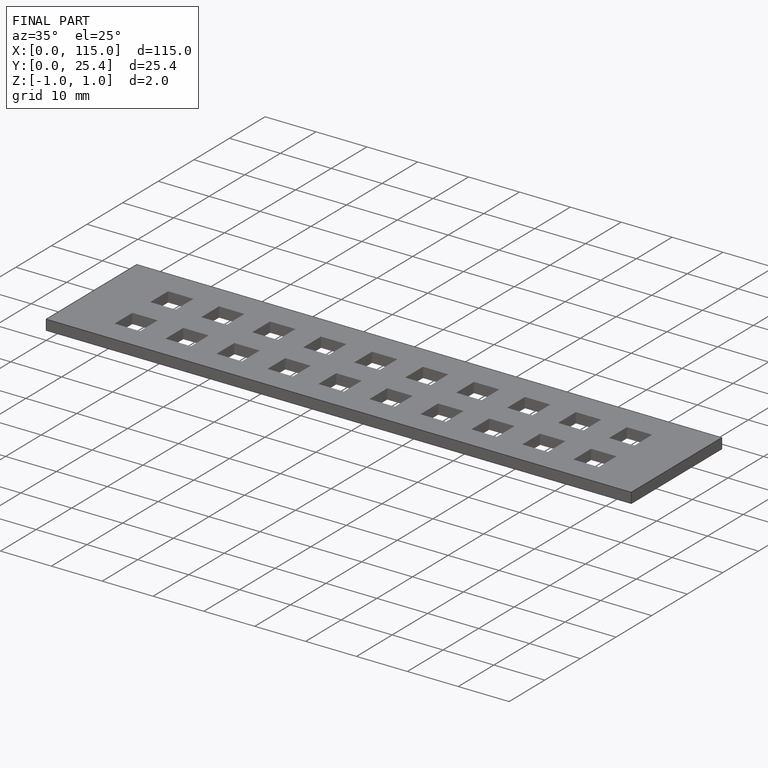
[diagram: finished part — iso view with bounding-box wireframe]
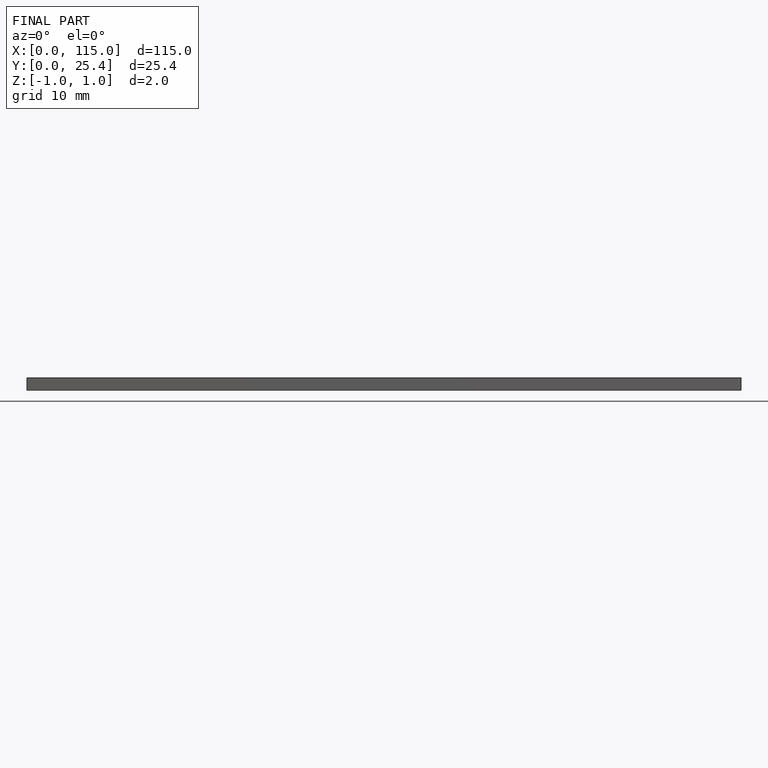
[diagram: finished part — front view with bounding-box wireframe]
